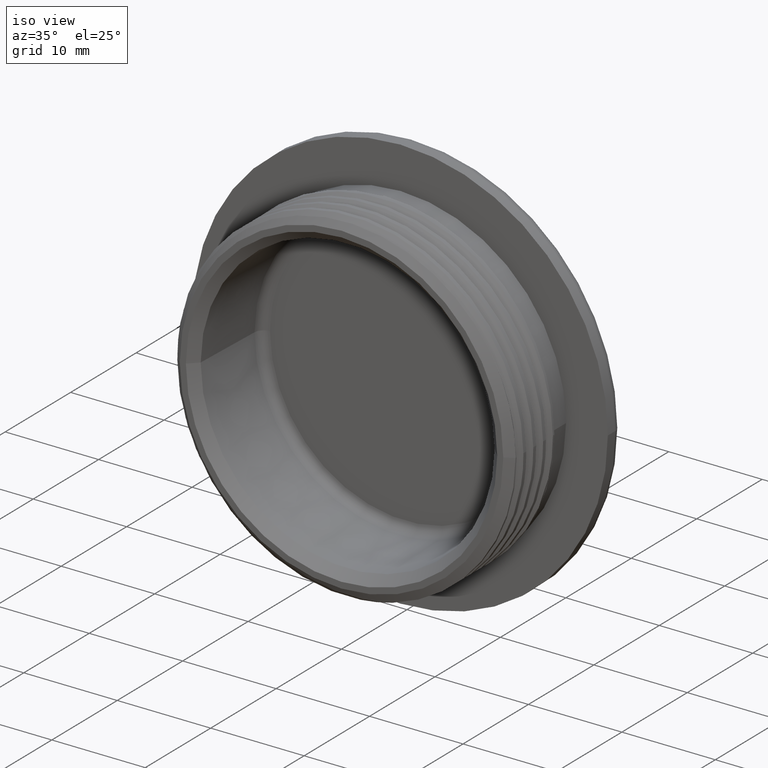
[diagram: clean part render]
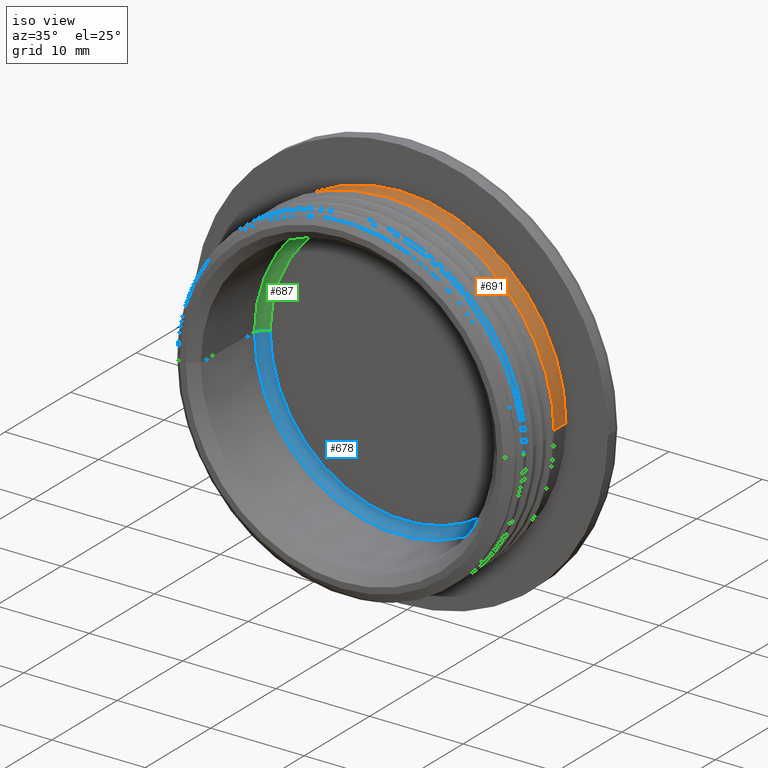
[diagram: same view with three faces highlighted in distinct colors, each labeled with its STEP entity id]
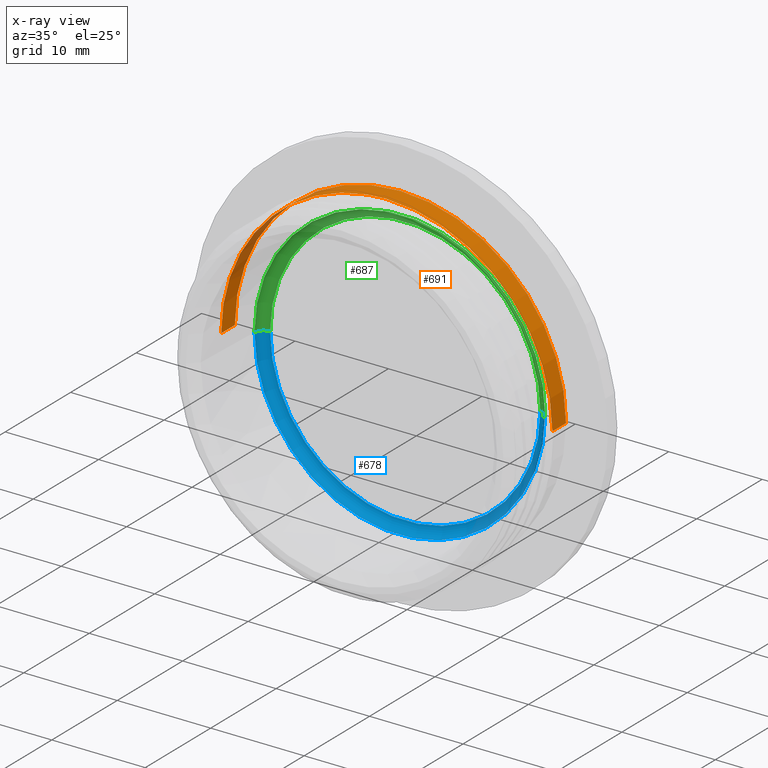
[diagram: x-ray of the same camera — body ghosted, the three highlighted faces saturated]
A machine part, iso view with three faces highlighted in distinct colors.
The next image is the same camera in x-ray (body ghosted, the three faces saturated) — at least one of them is partly hidden behind the body in this view.
Their STEP definitions:

[orange] entity #691 — the highlighted cylindrical surface (partial cylindrical patch) has radius 17.72 mm, axis along (-0, -1, -0).
#49 = ORIENTED_EDGE ( 'NONE', *, *, #579, .F. ) ;
#50 = ORIENTED_EDGE ( 'NONE', *, *, #586, .T. ) ;
#58 = ORIENTED_EDGE ( 'NONE', *, *, #630, .T. ) ;
#59 = ORIENTED_EDGE ( 'NONE', *, *, #573, .T. ) ;
#83 = ORIENTED_EDGE ( 'NONE', *, *, #620, .T. ) ;
#103 = ORIENTED_EDGE ( 'NONE', *, *, #650, .T. ) ;
#117 = ORIENTED_EDGE ( 'NONE', *, *, #645, .T. ) ;
#195 = EDGE_LOOP ( 'NONE', ( #83, #50, #117, #103, #58, #59, #49 ) ) ;
#271 = VERTEX_POINT ( 'NONE', #346 ) ;
#275 = VERTEX_POINT ( 'NONE', #332 ) ;
#279 = VERTEX_POINT ( 'NONE', #330 ) ;
#292 = VERTEX_POINT ( 'NONE', #354 ) ;
#295 = VERTEX_POINT ( 'NONE', #321 ) ;
#308 = VERTEX_POINT ( 'NONE', #319 ) ;
#319 = CARTESIAN_POINT ( 'NONE',  ( 17.72000000008656800, 9.000770285657957000, 0.0000000000000000000 ) ) ;
#321 = CARTESIAN_POINT ( 'NONE',  ( -2.495151259486641600E-016, 6.910770285673581100, 17.72000000008500800 ) ) ;
#324 = VERTEX_POINT ( 'NONE', #325 ) ;
#325 = CARTESIAN_POINT ( 'NONE',  ( -17.72000000008581100, 6.910770285675748200, 2.202568756518844800E-015 ) ) ;
#330 = CARTESIAN_POINT ( 'NONE',  ( 17.72000000007842500, 6.910770285674059800, 0.0000000000000000000 ) ) ;
#332 = CARTESIAN_POINT ( 'NONE',  ( 4.818277454686411600E-016, 6.937974418717369800, 17.72000000008613800 ) ) ;
#346 = CARTESIAN_POINT ( 'NONE',  ( -2.079162639389211500, 6.910770285679386200, 17.59759877715879000 ) ) ;
#354 = CARTESIAN_POINT ( 'NONE',  ( -17.72000000008570800, 9.000770285659642800, 2.170074128099658800E-015 ) ) ;
#408 = DIRECTION ( 'NONE',  ( 1.000000000000000000, -4.762657850217913200E-014, 0.0000000000000000000 ) ) ;
#422 = CARTESIAN_POINT ( 'NONE',  ( 3.290921063283528600E-013, 6.910770285674903600, 0.0000000000000000000 ) ) ;
#425 = DIRECTION ( 'NONE',  ( 4.762017730650322400E-014, 1.000000000000000000, 0.0000000000000000000 ) ) ;
#446 = LINE ( 'NONE', #538, #755 ) ;
#449 = CARTESIAN_POINT ( 'NONE',  ( 17.72000000008613800, -8.438295418753390200E-013, 0.0000000000000000000 ) ) ;
#450 = LINE ( 'NONE', #449, #764 ) ;
#481 = DIRECTION ( 'NONE',  ( -4.762017730650322400E-014, -1.000000000000000000, -0.0000000000000000000 ) ) ;
#499 = DIRECTION ( 'NONE',  ( -4.762017730650322400E-014, -1.000000000000000000, -0.0000000000000000000 ) ) ;
#538 = CARTESIAN_POINT ( 'NONE',  ( -17.72000000008613800, 8.438295418753390200E-013, 2.170074128099658800E-015 ) ) ;
#573 = EDGE_CURVE ( 'NONE', #295, #279, #747, .T. ) ;
#579 = EDGE_CURVE ( 'NONE', #308, #279, #450, .T. ) ;
#586 = EDGE_CURVE ( 'NONE', #292, #324, #446, .T. ) ;
#620 = EDGE_CURVE ( 'NONE', #308, #292, #790, .T. ) ;
#630 = EDGE_CURVE ( 'NONE', #275, #295, #2068, .T. ) ;
#645 = EDGE_CURVE ( 'NONE', #324, #271, #788, .T. ) ;
#650 = EDGE_CURVE ( 'NONE', #271, #275, #723, .T. ) ;
#691 = ADVANCED_FACE ( 'NONE', ( #1849 ), #1852, .T. ) ;
#723 =( BOUNDED_CURVE ( )  B_SPLINE_CURVE ( 2, ( #1058, #1059, #1081 ),
 .UNSPECIFIED., .F., .F. ) 
 B_SPLINE_CURVE_WITH_KNOTS ( ( 3, 3 ),
 ( 2.302841330731588800E-016, 0.002082940086815109100 ),
 .UNSPECIFIED. ) 
 CURVE ( )  GEOMETRIC_REPRESENTATION_ITEM ( )  RATIONAL_B_SPLINE_CURVE ( ( 0.9803708932194920000, 0.9884254793934086300, 1.000000000000000000 ) ) 
 REPRESENTATION_ITEM ( '' )  );
#742 = AXIS2_PLACEMENT_3D ( 'NONE', #422, #425, #408 ) ;
#747 = CIRCLE ( 'NONE', #742, 17.72000000008613800 ) ;
#755 = VECTOR ( 'NONE', #499, 1000.000000000000000 ) ;
#764 = VECTOR ( 'NONE', #481, 1000.000000000000000 ) ;
#772 = AXIS2_PLACEMENT_3D ( 'NONE', #939, #949, #913 ) ;
#788 = CIRCLE ( 'NONE', #772, 17.72000000008613800 ) ;
#790 = CIRCLE ( 'NONE', #793, 17.72000000008613800 ) ;
#793 = AXIS2_PLACEMENT_3D ( 'NONE', #2003, #2004, #2024 ) ;
#799 = VECTOR ( 'NONE', #2053, 1000.000000000000000 ) ;
#820 = AXIS2_PLACEMENT_3D ( 'NONE', #1830, #1815, #1854 ) ;
#913 = DIRECTION ( 'NONE',  ( 1.000000000000000000, -4.762657850217913200E-014, 0.0000000000000000000 ) ) ;
#939 = CARTESIAN_POINT ( 'NONE',  ( 3.290921063283528600E-013, 6.910770285674903600, 0.0000000000000000000 ) ) ;
#949 = DIRECTION ( 'NONE',  ( 4.762017730650322400E-014, 1.000000000000000000, 0.0000000000000000000 ) ) ;
#1058 = CARTESIAN_POINT ( 'NONE',  ( -2.079162639389211500, 6.910770285679386200, 17.59759877715879000 ) ) ;
#1059 = CARTESIAN_POINT ( 'NONE',  ( -1.043184226723210300, 6.924650123209888300, 17.72000000008612000 ) ) ;
#1081 = CARTESIAN_POINT ( 'NONE',  ( 4.818277454686411600E-016, 6.937974418717369800, 17.72000000008613800 ) ) ;
#1815 = DIRECTION ( 'NONE',  ( -4.762017730650322400E-014, -1.000000000000000000, -0.0000000000000000000 ) ) ;
#1830 = CARTESIAN_POINT ( 'NONE',  ( 0.0000000000000000000, 0.0000000000000000000, 0.0000000000000000000 ) ) ;
#1849 = FACE_OUTER_BOUND ( 'NONE', #195, .T. ) ;
#1852 = CYLINDRICAL_SURFACE ( 'NONE', #820, 17.72000000008613800 ) ;
#1854 = DIRECTION ( 'NONE',  ( 1.000000000000000000, -4.762017730650322400E-014, 0.0000000000000000000 ) ) ;
#2003 = CARTESIAN_POINT ( 'NONE',  ( 4.286182768981777200E-013, 9.000770285658800800, 0.0000000000000000000 ) ) ;
#2004 = DIRECTION ( 'NONE',  ( -4.762017730650322400E-014, -1.000000000000000000, -0.0000000000000000000 ) ) ;
#2024 = DIRECTION ( 'NONE',  ( 1.000000000000000000, -4.757763032283465000E-014, 0.0000000000000000000 ) ) ;
#2053 = DIRECTION ( 'NONE',  ( -4.762017730650322400E-014, -1.000000000000000000, -0.0000000000000000000 ) ) ;
#2068 = LINE ( 'NONE', #2069, #799 ) ;
#2069 = CARTESIAN_POINT ( 'NONE',  ( -3.294239164763674300E-013, 1.568722531160732500E-026, 17.72000000008613800 ) ) ;

[blue] entity #678 — the highlighted toroidal blend (fillet) surface has major radius 14.4552 mm and minor (blend) radius 1 mm.
#8 = DIRECTION ( 'NONE',  ( 1.000000000000000000, -4.680675431008944800E-014, 0.0000000000000000000 ) ) ;
#41 = DIRECTION ( 'NONE',  ( -4.761963026046087500E-014, -1.000000000000000000, 0.0000000000000000000 ) ) ;
#46 = CARTESIAN_POINT ( 'NONE',  ( 4.180756393973819600E-013, 8.768713650707582000, 0.0000000000000000000 ) ) ;
#63 = ORIENTED_EDGE ( 'NONE', *, *, #593, .T. ) ;
#93 = ORIENTED_EDGE ( 'NONE', *, *, #600, .T. ) ;
#152 = ORIENTED_EDGE ( 'NONE', *, *, #686, .F. ) ;
#177 = ORIENTED_EDGE ( 'NONE', *, *, #660, .F. ) ;
#270 = VERTEX_POINT ( 'NONE', #350 ) ;
#288 = VERTEX_POINT ( 'NONE', #339 ) ;
#299 = VERTEX_POINT ( 'NONE', #317 ) ;
#302 = VERTEX_POINT ( 'NONE', #363 ) ;
#313 = EDGE_LOOP ( 'NONE', ( #177, #63, #93, #152 ) ) ;
#317 = CARTESIAN_POINT ( 'NONE',  ( 14.45520969259880100, 9.733814154013201000, 9.463213529225447800E-016 ) ) ;
#339 = CARTESIAN_POINT ( 'NONE',  ( 15.45460051961816300, 8.768713650706853700, 9.463213529225447800E-016 ) ) ;
#350 = CARTESIAN_POINT ( 'NONE',  ( -15.45460051961733000, 8.768713650708310300, 2.838964058767633600E-015 ) ) ;
#363 = CARTESIAN_POINT ( 'NONE',  ( -14.45520969259787800, 9.733814154014575900, 2.777769019897307200E-015 ) ) ;
#556 = CARTESIAN_POINT ( 'NONE',  ( -14.45520969259793100, 8.733814154014575900, 2.716573981026980100E-015 ) ) ;
#564 = DIRECTION ( 'NONE',  ( 1.000000000000000000, 0.0000000000000000000, -1.224646799147351500E-016 ) ) ;
#565 = DIRECTION ( 'NONE',  ( 1.224646799147353200E-016, -5.821524621360372900E-030, 1.000000000000000000 ) ) ;
#593 = EDGE_CURVE ( 'NONE', #302, #270, #766, .T. ) ;
#600 = EDGE_CURVE ( 'NONE', #270, #288, #779, .T. ) ;
#660 = EDGE_CURVE ( 'NONE', #302, #299, #824, .T. ) ;
#678 = ADVANCED_FACE ( 'NONE', ( #1775 ), #846, .F. ) ;
#686 = EDGE_CURVE ( 'NONE', #299, #288, #822, .T. ) ;
#741 = AXIS2_PLACEMENT_3D ( 'NONE', #556, #565, #564 ) ;
#766 = CIRCLE ( 'NONE', #741, 0.9999999999999991100 ) ;
#771 = AXIS2_PLACEMENT_3D ( 'NONE', #46, #41, #8 ) ;
#779 = CIRCLE ( 'NONE', #771, 15.45460051961774500 ) ;
#822 = CIRCLE ( 'NONE', #871, 0.9999999999999991100 ) ;
#824 = CIRCLE ( 'NONE', #838, 14.45520969259834000 ) ;
#838 = AXIS2_PLACEMENT_3D ( 'NONE', #1125, #1094, #1111 ) ;
#840 = AXIS2_PLACEMENT_3D ( 'NONE', #1795, #1787, #1759 ) ;
#846 = TOROIDAL_SURFACE ( 'NONE', #840, 14.45520969259834500, 0.9999999999999986700 ) ;
#871 = AXIS2_PLACEMENT_3D ( 'NONE', #1823, #1850, #1855 ) ;
#1094 = DIRECTION ( 'NONE',  ( -4.753635599597814600E-014, -1.000000000000000000, 0.0000000000000000000 ) ) ;
#1111 = DIRECTION ( 'NONE',  ( 1.000000000000000000, -4.752269327774348900E-014, 0.0000000000000000000 ) ) ;
#1125 = CARTESIAN_POINT ( 'NONE',  ( 4.621352667544349300E-013, 9.733814154013888500, 9.463213529225447800E-016 ) ) ;
#1759 = DIRECTION ( 'NONE',  ( 1.000000000000000000, -4.753635599597814600E-014, 0.0000000000000000000 ) ) ;
#1775 = FACE_OUTER_BOUND ( 'NONE', #313, .T. ) ;
#1787 = DIRECTION ( 'NONE',  ( -4.753635599597814600E-014, -1.000000000000000000, 0.0000000000000000000 ) ) ;
#1795 = CARTESIAN_POINT ( 'NONE',  ( 4.145989107584569000E-013, 8.733814154013890300, 9.463213529225447800E-016 ) ) ;
#1823 = CARTESIAN_POINT ( 'NONE',  ( 14.45520969259876100, 8.733814154013202800, 9.463213529225447800E-016 ) ) ;
#1850 = DIRECTION ( 'NONE',  ( 0.0000000000000000000, -0.0000000000000000000, -1.000000000000000000 ) ) ;
#1855 = DIRECTION ( 'NONE',  ( -1.000000000000000000, 0.0000000000000000000, 0.0000000000000000000 ) ) ;

[green] entity #687 — the highlighted toroidal blend (fillet) surface has major radius 14.4552 mm and minor (blend) radius 1 mm.
#91 = ORIENTED_EDGE ( 'NONE', *, *, #664, .T. ) ;
#92 = ORIENTED_EDGE ( 'NONE', *, *, #686, .T. ) ;
#156 = ORIENTED_EDGE ( 'NONE', *, *, #597, .F. ) ;
#184 = ORIENTED_EDGE ( 'NONE', *, *, #593, .F. ) ;
#189 = EDGE_LOOP ( 'NONE', ( #184, #156, #92, #91 ) ) ;
#270 = VERTEX_POINT ( 'NONE', #350 ) ;
#288 = VERTEX_POINT ( 'NONE', #339 ) ;
#299 = VERTEX_POINT ( 'NONE', #317 ) ;
#302 = VERTEX_POINT ( 'NONE', #363 ) ;
#317 = CARTESIAN_POINT ( 'NONE',  ( 14.45520969259880100, 9.733814154013201000, 9.463213529225447800E-016 ) ) ;
#339 = CARTESIAN_POINT ( 'NONE',  ( 15.45460051961816300, 8.768713650706853700, 9.463213529225447800E-016 ) ) ;
#350 = CARTESIAN_POINT ( 'NONE',  ( -15.45460051961733000, 8.768713650708310300, 2.838964058767633600E-015 ) ) ;
#363 = CARTESIAN_POINT ( 'NONE',  ( -14.45520969259787800, 9.733814154014575900, 2.777769019897307200E-015 ) ) ;
#544 = DIRECTION ( 'NONE',  ( -4.753635599597814600E-014, -1.000000000000000000, 0.0000000000000000000 ) ) ;
#554 = DIRECTION ( 'NONE',  ( 1.000000000000000000, -4.752269327774348900E-014, 0.0000000000000000000 ) ) ;
#555 = CARTESIAN_POINT ( 'NONE',  ( 4.621352667544349300E-013, 9.733814154013888500, 9.463213529225447800E-016 ) ) ;
#556 = CARTESIAN_POINT ( 'NONE',  ( -14.45520969259793100, 8.733814154014575900, 2.716573981026980100E-015 ) ) ;
#564 = DIRECTION ( 'NONE',  ( 1.000000000000000000, 0.0000000000000000000, -1.224646799147351500E-016 ) ) ;
#565 = DIRECTION ( 'NONE',  ( 1.224646799147353200E-016, -5.821524621360372900E-030, 1.000000000000000000 ) ) ;
#593 = EDGE_CURVE ( 'NONE', #302, #270, #766, .T. ) ;
#597 = EDGE_CURVE ( 'NONE', #299, #302, #777, .T. ) ;
#664 = EDGE_CURVE ( 'NONE', #288, #270, #829, .T. ) ;
#686 = EDGE_CURVE ( 'NONE', #299, #288, #822, .T. ) ;
#687 = ADVANCED_FACE ( 'NONE', ( #1811 ), #865, .F. ) ;
#741 = AXIS2_PLACEMENT_3D ( 'NONE', #556, #565, #564 ) ;
#766 = CIRCLE ( 'NONE', #741, 0.9999999999999991100 ) ;
#774 = AXIS2_PLACEMENT_3D ( 'NONE', #555, #544, #554 ) ;
#777 = CIRCLE ( 'NONE', #774, 14.45520969259834000 ) ;
#817 = AXIS2_PLACEMENT_3D ( 'NONE', #1819, #1836, #1828 ) ;
#822 = CIRCLE ( 'NONE', #871, 0.9999999999999991100 ) ;
#829 = CIRCLE ( 'NONE', #833, 15.45460051961774500 ) ;
#833 = AXIS2_PLACEMENT_3D ( 'NONE', #1089, #1130, #1132 ) ;
#865 = TOROIDAL_SURFACE ( 'NONE', #817, 14.45520969259834500, 0.9999999999999986700 ) ;
#871 = AXIS2_PLACEMENT_3D ( 'NONE', #1823, #1850, #1855 ) ;
#1089 = CARTESIAN_POINT ( 'NONE',  ( 4.180756393973819600E-013, 8.768713650707582000, 0.0000000000000000000 ) ) ;
#1130 = DIRECTION ( 'NONE',  ( -4.761963026046087500E-014, -1.000000000000000000, 0.0000000000000000000 ) ) ;
#1132 = DIRECTION ( 'NONE',  ( 1.000000000000000000, -4.680675431008944800E-014, 0.0000000000000000000 ) ) ;
#1811 = FACE_OUTER_BOUND ( 'NONE', #189, .T. ) ;
#1819 = CARTESIAN_POINT ( 'NONE',  ( 4.145989107584569000E-013, 8.733814154013890300, 9.463213529225447800E-016 ) ) ;
#1823 = CARTESIAN_POINT ( 'NONE',  ( 14.45520969259876100, 8.733814154013202800, 9.463213529225447800E-016 ) ) ;
#1828 = DIRECTION ( 'NONE',  ( 1.000000000000000000, -4.753635599597814600E-014, 0.0000000000000000000 ) ) ;
#1836 = DIRECTION ( 'NONE',  ( -4.753635599597814600E-014, -1.000000000000000000, 0.0000000000000000000 ) ) ;
#1850 = DIRECTION ( 'NONE',  ( 0.0000000000000000000, -0.0000000000000000000, -1.000000000000000000 ) ) ;
#1855 = DIRECTION ( 'NONE',  ( -1.000000000000000000, 0.0000000000000000000, 0.0000000000000000000 ) ) ;